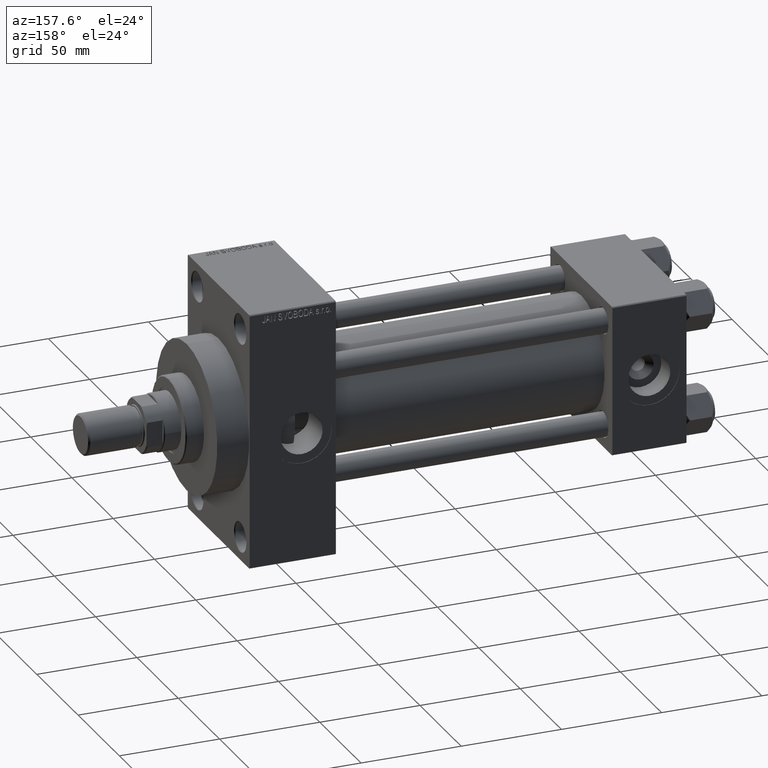
[diagram: clean part render]
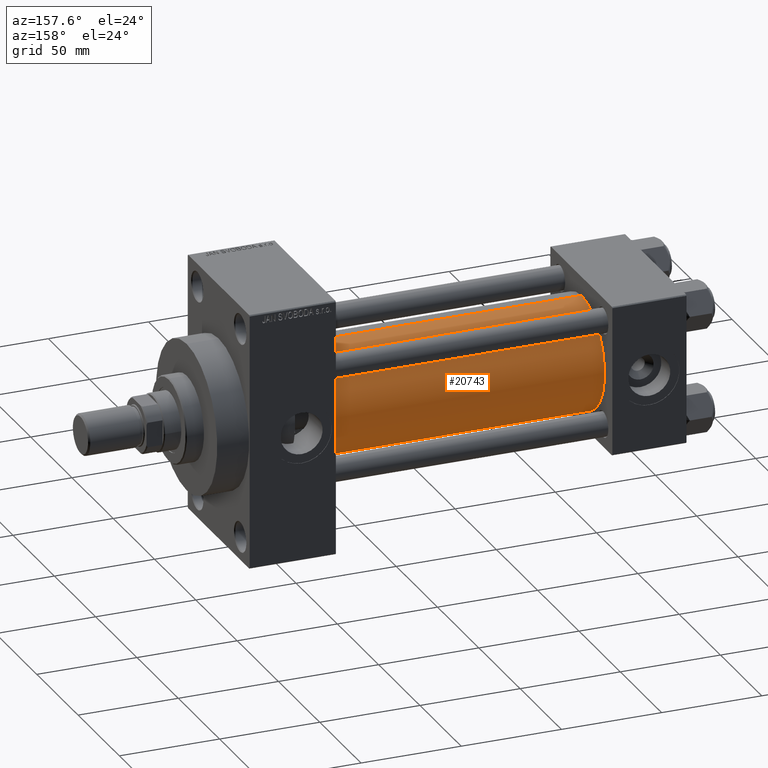
[diagram: same view with one face highlighted and labeled with its STEP entity id]
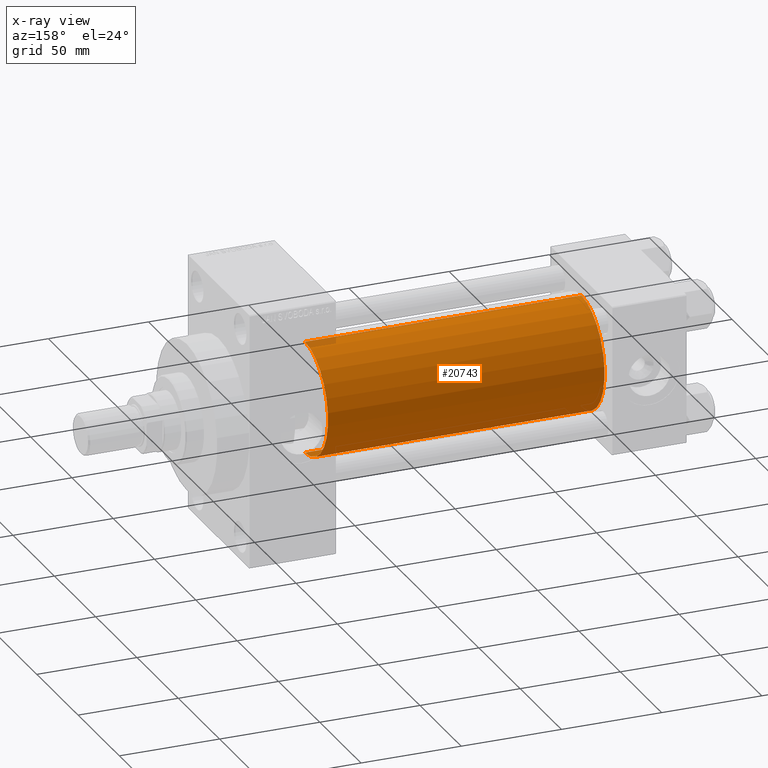
[diagram: x-ray of the same camera — body ghosted, the highlighted face saturated]
A machine part, auxiliary view. The second image highlights one B-rep face of the part: STEP entity #20743.
The next image is the same camera in x-ray: the body ghosted, the highlighted face saturated — about 1% of this face is hidden behind the body in this view.
In plain terms, the highlighted cylindrical surface (partial cylindrical patch) has radius 28 mm, axis along (-1, -0, -0).
Its self-contained STEP definition (entity closure, byte-faithful):
#421 = AXIS2_PLACEMENT_3D ( 'NONE', #33893, #865, #15586 ) ;
#618 = CARTESIAN_POINT ( 'NONE',  ( 37.00000000000000711, -2.602085213965210642E-15, 0.000000000000000000 ) ) ;
#786 = CARTESIAN_POINT ( 'NONE',  ( 175.0000000000000284, -2.602085213965210642E-15, 0.000000000000000000 ) ) ;
#850 = CIRCLE ( 'NONE', #10891, 28.00000000000000000 ) ;
#865 = DIRECTION ( 'NONE',  ( -1.000000000000000000, -0.000000000000000000, -0.000000000000000000 ) ) ;
#1910 = ORIENTED_EDGE ( 'NONE', *, *, #38929, .T. ) ;
#2993 = EDGE_LOOP ( 'NONE', ( #29887, #33581, #1910, #9796 ) ) ;
#3005 = DIRECTION ( 'NONE',  ( -1.000000000000000000, -0.000000000000000000, -0.000000000000000000 ) ) ;
#4446 = EDGE_CURVE ( 'NONE', #36967, #37858, #31808, .T. ) ;
#4504 = CARTESIAN_POINT ( 'NONE',  ( 175.0000000000000284, 8.269258236473784371E-16, -28.00000000000000000 ) ) ;
#5223 = VERTEX_POINT ( 'NONE', #15164 ) ;
#9563 = CARTESIAN_POINT ( 'NONE',  ( 37.00000000000000711, 8.269258236473784371E-16, -28.00000000000000000 ) ) ;
#9654 = EDGE_CURVE ( 'NONE', #36967, #18990, #33385, .T. ) ;
#9796 = ORIENTED_EDGE ( 'NONE', *, *, #13178, .F. ) ;
#10891 = AXIS2_PLACEMENT_3D ( 'NONE', #618, #33417, #30029 ) ;
#13178 = EDGE_CURVE ( 'NONE', #18990, #5223, #28801, .T. ) ;
#13503 = DIRECTION ( 'NONE',  ( -1.000000000000000000, -0.000000000000000000, -0.000000000000000000 ) ) ;
#15164 = CARTESIAN_POINT ( 'NONE',  ( 37.00000000000000711, -2.602085213965210642E-15, 28.00000000000000000 ) ) ;
#15586 = DIRECTION ( 'NONE',  ( 0.000000000000000000, 0.000000000000000000, 1.000000000000000000 ) ) ;
#15828 = CYLINDRICAL_SURFACE ( 'NONE', #421, 28.00000000000000000 ) ;
#18990 = VERTEX_POINT ( 'NONE', #25220 ) ;
#20085 = DIRECTION ( 'NONE',  ( 0.000000000000000000, 0.000000000000000000, -1.000000000000000000 ) ) ;
#20743 = ADVANCED_FACE ( 'NONE', ( #37279 ), #15828, .T. ) ;
#23921 = DIRECTION ( 'NONE',  ( 1.000000000000000000, 0.000000000000000000, 0.000000000000000000 ) ) ;
#25220 = CARTESIAN_POINT ( 'NONE',  ( 175.0000000000000284, -2.602085213965210642E-15, 28.00000000000000000 ) ) ;
#25893 = CARTESIAN_POINT ( 'NONE',  ( 175.0000000000000284, -2.602085213965210642E-15, 28.00000000000000000 ) ) ;
#28801 = LINE ( 'NONE', #25893, #38740 ) ;
#29887 = ORIENTED_EDGE ( 'NONE', *, *, #9654, .F. ) ;
#30029 = DIRECTION ( 'NONE',  ( 0.000000000000000000, 0.000000000000000000, 1.000000000000000000 ) ) ;
#31808 = LINE ( 'NONE', #46517, #45550 ) ;
#33385 = CIRCLE ( 'NONE', #34146, 28.00000000000000000 ) ;
#33417 = DIRECTION ( 'NONE',  ( 1.000000000000000000, -0.000000000000000000, 0.000000000000000000 ) ) ;
#33581 = ORIENTED_EDGE ( 'NONE', *, *, #4446, .T. ) ;
#33893 = CARTESIAN_POINT ( 'NONE',  ( 175.0000000000000284, -2.602085213965210642E-15, 0.000000000000000000 ) ) ;
#34146 = AXIS2_PLACEMENT_3D ( 'NONE', #786, #23921, #20085 ) ;
#36967 = VERTEX_POINT ( 'NONE', #4504 ) ;
#37279 = FACE_OUTER_BOUND ( 'NONE', #2993, .T. ) ;
#37858 = VERTEX_POINT ( 'NONE', #9563 ) ;
#38740 = VECTOR ( 'NONE', #3005, 1000.000000000000000 ) ;
#38929 = EDGE_CURVE ( 'NONE', #37858, #5223, #850, .T. ) ;
#45550 = VECTOR ( 'NONE', #13503, 1000.000000000000000 ) ;
#46517 = CARTESIAN_POINT ( 'NONE',  ( 175.0000000000000284, 8.269258236473784371E-16, -28.00000000000000000 ) ) ;